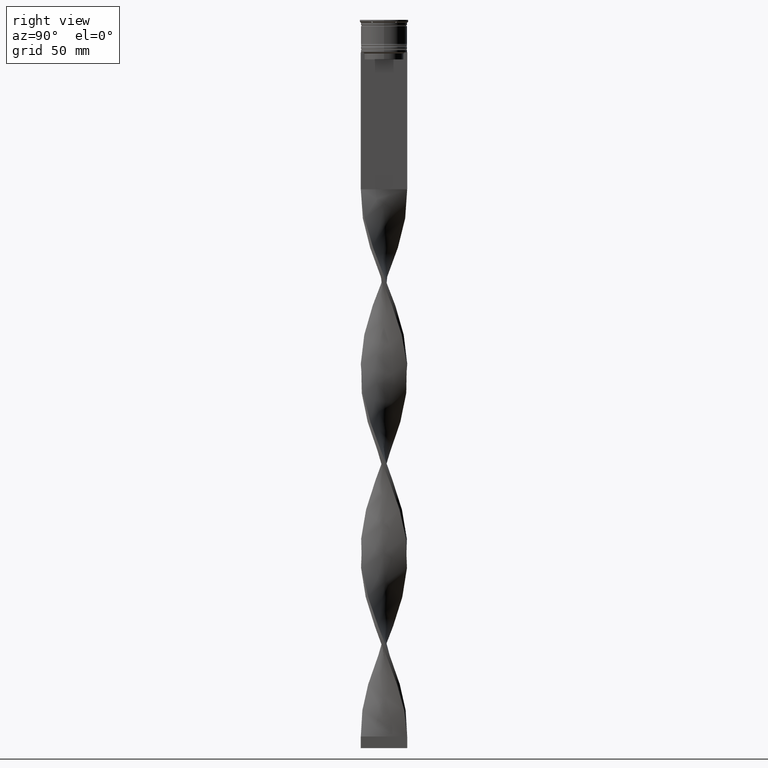
[diagram: clean part render]
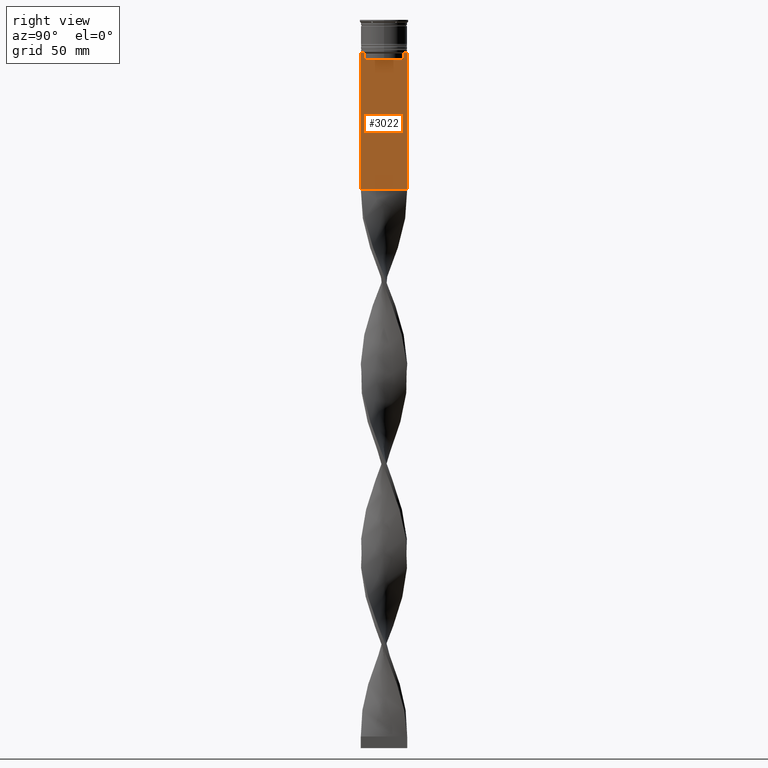
[diagram: same view with one face highlighted and labeled with its STEP entity id]
A machine part, right view. The second image highlights one B-rep face of the part: STEP entity #3022.
In plain terms, the highlighted planar face has unit normal (-1, 0, 0).
Its self-contained STEP definition (entity closure, byte-faithful):
#13 = CARTESIAN_POINT ( 'NONE',  ( 0.7500000000000001110, 8.868342573446296839, -14.00000000000000178 ) ) ;
#33 = VECTOR ( 'NONE', #1737, 1000.000000000000000 ) ;
#42 = EDGE_CURVE ( 'NONE', #3791, #2544, #816, .T. ) ;
#91 = CARTESIAN_POINT ( 'NONE',  ( 0.7500000000000001110, -8.366450860430608927, -14.50000000000000000 ) ) ;
#193 = EDGE_CURVE ( 'NONE', #2489, #3794, #1360, .T. ) ;
#194 = ORIENTED_EDGE ( 'NONE', *, *, #3264, .T. ) ;
#344 = CARTESIAN_POINT ( 'NONE',  ( 0.7500000000000001110, 9.999999999999998224, -14.00000000000000178 ) ) ;
#370 = EDGE_CURVE ( 'NONE', #612, #3046, #3309, .T. ) ;
#414 = LINE ( 'NONE', #3088, #3165 ) ;
#462 = PLANE ( 'NONE',  #1928 ) ;
#514 = ORIENTED_EDGE ( 'NONE', *, *, #2852, .T. ) ;
#579 = EDGE_LOOP ( 'NONE', ( #4281, #2227, #1250, #3240, #3234, #514, #1301, #1052, #2266, #194, #3070, #3052 ) ) ;
#612 = VERTEX_POINT ( 'NONE', #3320 ) ;
#643 = LINE ( 'NONE', #3322, #3225 ) ;
#766 = DIRECTION ( 'NONE',  ( 0.000000000000000000, 1.000000000000000000, 0.000000000000000000 ) ) ;
#816 = LINE ( 'NONE', #1475, #2179 ) ;
#832 = CARTESIAN_POINT ( 'NONE',  ( 0.7500000000000001110, 9.999999999999998224, 6.056171120131581098 ) ) ;
#865 = CARTESIAN_POINT ( 'NONE',  ( 0.7500000000000001110, -10.00000000000000533, -14.00000000000000178 ) ) ;
#881 = VECTOR ( 'NONE', #3984, 1000.000000000000000 ) ;
#897 = CARTESIAN_POINT ( 'NONE',  ( 0.7500000000000002220, 9.999999999999998224, -73.00000000000001421 ) ) ;
#933 = DIRECTION ( 'NONE',  ( 0.000000000000000000, -1.000000000000000000, 0.000000000000000000 ) ) ;
#953 = VECTOR ( 'NONE', #933, 1000.000000000000000 ) ;
#1010 = DIRECTION ( 'NONE',  ( 0.000000000000000000, -1.000000000000000000, 0.000000000000000000 ) ) ;
#1052 = ORIENTED_EDGE ( 'NONE', *, *, #3622, .T. ) ;
#1082 = FACE_OUTER_BOUND ( 'NONE', #579, .T. ) ;
#1146 = CARTESIAN_POINT ( 'NONE',  ( 0.7500000000000001110, -8.533766903463440912, -14.33335220807192023 ) ) ;
#1250 = ORIENTED_EDGE ( 'NONE', *, *, #370, .T. ) ;
#1301 = ORIENTED_EDGE ( 'NONE', *, *, #3306, .T. ) ;
#1338 = LINE ( 'NONE', #2941, #3233 ) ;
#1360 = LINE ( 'NONE', #832, #3346 ) ;
#1453 = CARTESIAN_POINT ( 'NONE',  ( 0.7500000000000001110, -8.868342573446296839, -14.00000000000000178 ) ) ;
#1475 = CARTESIAN_POINT ( 'NONE',  ( 0.7500000000000001110, -10.00000000000000533, -14.00000000000000178 ) ) ;
#1584 = VERTEX_POINT ( 'NONE', #3455 ) ;
#1682 = VERTEX_POINT ( 'NONE', #4109 ) ;
#1723 = B_SPLINE_CURVE_WITH_KNOTS ( 'NONE', 3,
 ( #91, #1146, #3365, #1453 ),
 .UNSPECIFIED., .F., .F.,
 ( 4, 4 ),
 ( 0.03866293624047253963, 0.03937282246709320616 ),
 .UNSPECIFIED. ) ;
#1737 = DIRECTION ( 'NONE',  ( -0.000000000000000000, -0.000000000000000000, 1.000000000000000000 ) ) ;
#1762 = EDGE_CURVE ( 'NONE', #2544, #612, #2599, .T. ) ;
#1801 = DIRECTION ( 'NONE',  ( 0.000000000000000000, 0.000000000000000000, 1.000000000000000000 ) ) ;
#1916 = EDGE_CURVE ( 'NONE', #2489, #3791, #2883, .T. ) ;
#1928 = AXIS2_PLACEMENT_3D ( 'NONE', #2121, #3715, #1801 ) ;
#1987 = EDGE_CURVE ( 'NONE', #3046, #1682, #643, .T. ) ;
#2060 = CARTESIAN_POINT ( 'NONE',  ( 0.7500000000000001110, 8.366450860430608927, -17.00000000000000000 ) ) ;
#2105 = CARTESIAN_POINT ( 'NONE',  ( 0.7500000000000001110, 8.533766897779925031, -14.33335221373273605 ) ) ;
#2112 = EDGE_CURVE ( 'NONE', #3376, #3831, #2283, .T. ) ;
#2119 = CARTESIAN_POINT ( 'NONE',  ( 0.7500000000000001110, -8.366450860430608927, 0.000000000000000000 ) ) ;
#2121 = CARTESIAN_POINT ( 'NONE',  ( 0.7500000000000001110, -10.00000000000000533, 6.056171120131581098 ) ) ;
#2162 = EDGE_CURVE ( 'NONE', #1682, #3766, #2643, .T. ) ;
#2168 = CARTESIAN_POINT ( 'NONE',  ( 0.7500000000000001110, -8.366450860430608927, -14.50000000000000000 ) ) ;
#2179 = VECTOR ( 'NONE', #3499, 1000.000000000000000 ) ;
#2219 = CARTESIAN_POINT ( 'NONE',  ( 0.7500000000000001110, -10.00000000000000533, -73.00000000000001421 ) ) ;
#2227 = ORIENTED_EDGE ( 'NONE', *, *, #1762, .T. ) ;
#2266 = ORIENTED_EDGE ( 'NONE', *, *, #2112, .T. ) ;
#2283 = LINE ( 'NONE', #3592, #881 ) ;
#2323 = DIRECTION ( 'NONE',  ( 0.000000000000000000, 0.000000000000000000, -1.000000000000000000 ) ) ;
#2372 = CARTESIAN_POINT ( 'NONE',  ( 0.7500000000000001110, -10.00000000000000533, -14.00000000000000178 ) ) ;
#2407 = VECTOR ( 'NONE', #4058, 1000.000000000000000 ) ;
#2428 = CARTESIAN_POINT ( 'NONE',  ( 0.7500000000000001110, 8.868342573446296839, -14.00000000000000178 ) ) ;
#2489 = VERTEX_POINT ( 'NONE', #344 ) ;
#2544 = VERTEX_POINT ( 'NONE', #13 ) ;
#2572 = CARTESIAN_POINT ( 'NONE',  ( 0.7500000000000001110, -10.00000000000000533, -14.00000000000000178 ) ) ;
#2599 = B_SPLINE_CURVE_WITH_KNOTS ( 'NONE', 3,
 ( #2428, #3741, #2105, #3408 ),
 .UNSPECIFIED., .F., .F.,
 ( 4, 4 ),
 ( 0.01512225952876174867, 0.01583070519299695222 ),
 .UNSPECIFIED. ) ;
#2629 = CARTESIAN_POINT ( 'NONE',  ( 0.7500000000000001110, -8.868342573446296839, -14.00000000000000178 ) ) ;
#2643 = LINE ( 'NONE', #2119, #33 ) ;
#2700 = LINE ( 'NONE', #2372, #2407 ) ;
#2759 = VERTEX_POINT ( 'NONE', #2629 ) ;
#2852 = EDGE_CURVE ( 'NONE', #3766, #2759, #1723, .T. ) ;
#2883 = LINE ( 'NONE', #865, #953 ) ;
#2941 = CARTESIAN_POINT ( 'NONE',  ( 0.7500000000000001110, -10.00000000000000533, -14.00000000000000178 ) ) ;
#2949 = DIRECTION ( 'NONE',  ( 0.000000000000000000, -1.000000000000000000, 0.000000000000000000 ) ) ;
#3022 = ADVANCED_FACE ( 'NONE', ( #1082 ), #462, .F. ) ;
#3046 = VERTEX_POINT ( 'NONE', #2060 ) ;
#3052 = ORIENTED_EDGE ( 'NONE', *, *, #1916, .T. ) ;
#3070 = ORIENTED_EDGE ( 'NONE', *, *, #193, .F. ) ;
#3088 = CARTESIAN_POINT ( 'NONE',  ( 0.7500000000000001110, -10.00000000000000533, -73.00000000000001421 ) ) ;
#3165 = VECTOR ( 'NONE', #766, 1000.000000000000000 ) ;
#3225 = VECTOR ( 'NONE', #2949, 1000.000000000000000 ) ;
#3233 = VECTOR ( 'NONE', #1010, 1000.000000000000000 ) ;
#3234 = ORIENTED_EDGE ( 'NONE', *, *, #2162, .T. ) ;
#3240 = ORIENTED_EDGE ( 'NONE', *, *, #1987, .T. ) ;
#3264 = EDGE_CURVE ( 'NONE', #3831, #3794, #414, .T. ) ;
#3306 = EDGE_CURVE ( 'NONE', #2759, #1584, #2700, .T. ) ;
#3309 = LINE ( 'NONE', #3900, #4258 ) ;
#3320 = CARTESIAN_POINT ( 'NONE',  ( 0.7500000000000001110, 8.366450860430608927, -14.50000000000000000 ) ) ;
#3322 = CARTESIAN_POINT ( 'NONE',  ( 0.7500000000000001110, 8.400000000000003908, -17.00000000000000000 ) ) ;
#3346 = VECTOR ( 'NONE', #3733, 1000.000000000000000 ) ;
#3365 = CARTESIAN_POINT ( 'NONE',  ( 0.7500000000000001110, -8.701063080777121428, -14.16668447713511725 ) ) ;
#3376 = VERTEX_POINT ( 'NONE', #2572 ) ;
#3408 = CARTESIAN_POINT ( 'NONE',  ( 0.7500000000000001110, 8.366450860430608927, -14.50000000000000000 ) ) ;
#3455 = CARTESIAN_POINT ( 'NONE',  ( 0.7500000000000001110, -9.871550030263739117, -14.00000000000000178 ) ) ;
#3499 = DIRECTION ( 'NONE',  ( 0.000000000000000000, -1.000000000000000000, 0.000000000000000000 ) ) ;
#3592 = CARTESIAN_POINT ( 'NONE',  ( 0.7500000000000001110, -10.00000000000000533, 6.056171120131581098 ) ) ;
#3622 = EDGE_CURVE ( 'NONE', #1584, #3376, #1338, .T. ) ;
#3715 = DIRECTION ( 'NONE',  ( -1.000000000000000000, 0.000000000000000000, 0.000000000000000000 ) ) ;
#3733 = DIRECTION ( 'NONE',  ( 0.000000000000000000, 0.000000000000000000, -1.000000000000000000 ) ) ;
#3741 = CARTESIAN_POINT ( 'NONE',  ( 0.7500000000000001110, 8.701063075415250481, -14.16668448247791545 ) ) ;
#3766 = VERTEX_POINT ( 'NONE', #2168 ) ;
#3791 = VERTEX_POINT ( 'NONE', #4158 ) ;
#3794 = VERTEX_POINT ( 'NONE', #897 ) ;
#3831 = VERTEX_POINT ( 'NONE', #2219 ) ;
#3900 = CARTESIAN_POINT ( 'NONE',  ( 0.7500000000000001110, 8.366450860430608927, 0.000000000000000000 ) ) ;
#3984 = DIRECTION ( 'NONE',  ( 0.000000000000000000, 0.000000000000000000, -1.000000000000000000 ) ) ;
#4058 = DIRECTION ( 'NONE',  ( 0.000000000000000000, -1.000000000000000000, 0.000000000000000000 ) ) ;
#4109 = CARTESIAN_POINT ( 'NONE',  ( 0.7500000000000001110, -8.366450860430608927, -17.00000000000000000 ) ) ;
#4158 = CARTESIAN_POINT ( 'NONE',  ( 0.7500000000000001110, 9.871550030263739117, -14.00000000000000178 ) ) ;
#4258 = VECTOR ( 'NONE', #2323, 1000.000000000000000 ) ;
#4281 = ORIENTED_EDGE ( 'NONE', *, *, #42, .T. ) ;